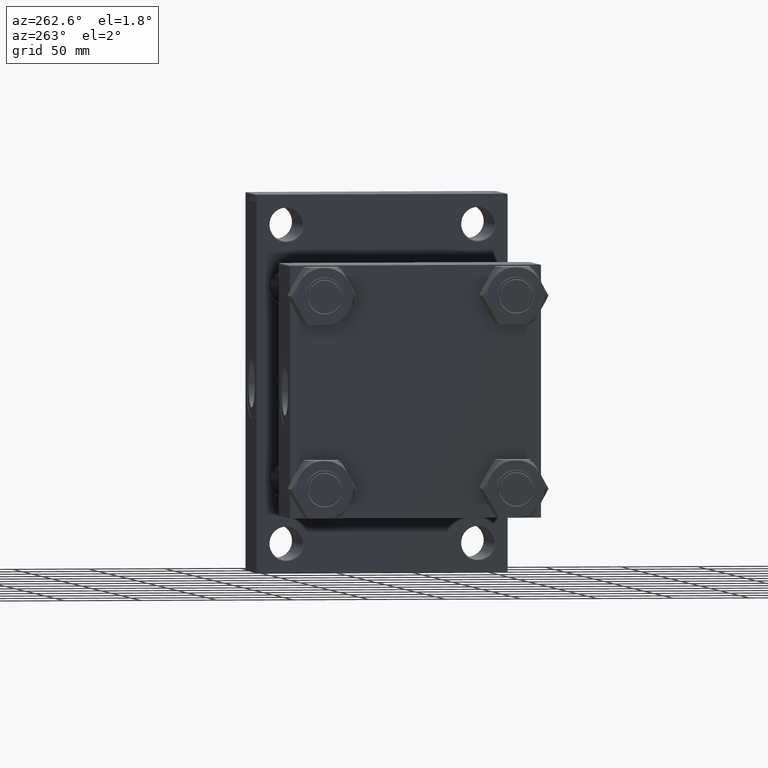
[diagram: clean part render]
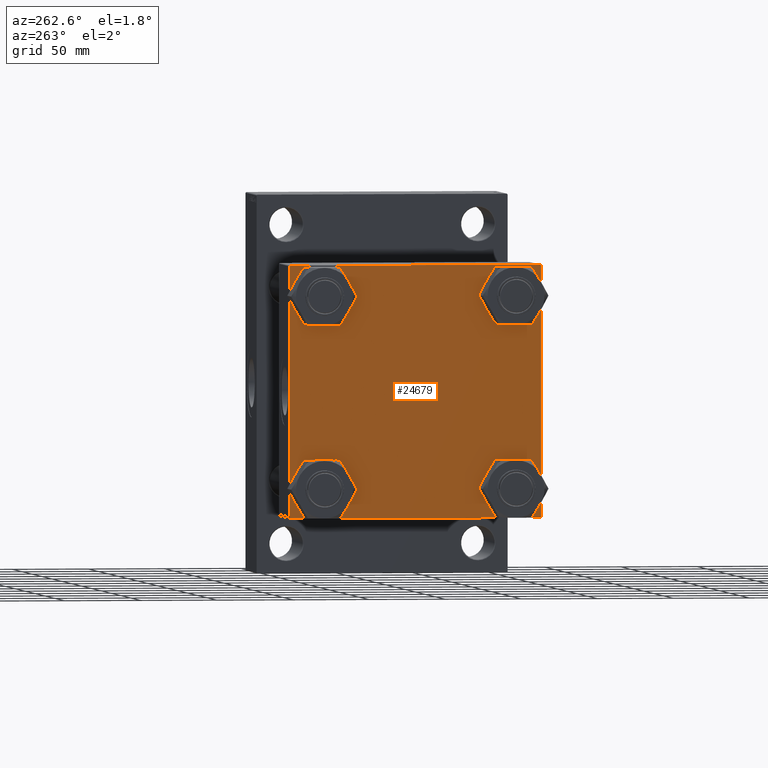
[diagram: same view with one face highlighted and labeled with its STEP entity id]
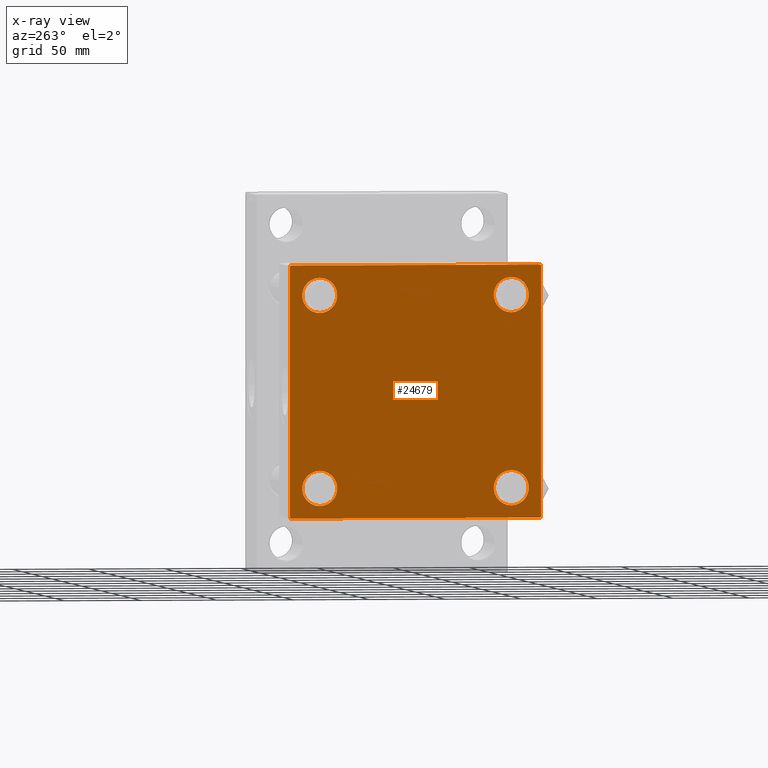
[diagram: x-ray of the same camera — body ghosted, the highlighted face saturated]
A machine part, auxiliary view. The second image highlights one B-rep face of the part: STEP entity #24679.
The next image is the same camera in x-ray: the body ghosted, the highlighted face saturated — about 0% of this face is hidden behind the body in this view.
In plain terms, the highlighted planar face has unit normal (-1, 0, 0).
Its self-contained STEP definition (entity closure, byte-faithful):
#584 = CIRCLE ( 'NONE', #47282, 11.50000000000001066 ) ;
#1351 = EDGE_CURVE ( 'NONE', #43924, #8431, #17751, .T. ) ;
#1450 = DIRECTION ( 'NONE',  ( 0.000000000000000000, 0.000000000000000000, -1.000000000000000000 ) ) ;
#1759 = DIRECTION ( 'NONE',  ( 0.000000000000000000, 0.000000000000000000, 1.000000000000000000 ) ) ;
#1806 = VERTEX_POINT ( 'NONE', #7918 ) ;
#1927 = CARTESIAN_POINT ( 'NONE',  ( 0.000000000000000000, -62.94999999999998153, 62.95000000000001705 ) ) ;
#2754 = AXIS2_PLACEMENT_3D ( 'NONE', #39096, #16951, #28856 ) ;
#3023 = VERTEX_POINT ( 'NONE', #23152 ) ;
#3109 = CIRCLE ( 'NONE', #24152, 11.50000000000001066 ) ;
#3349 = CIRCLE ( 'NONE', #30568, 11.50000000000001066 ) ;
#3507 = CARTESIAN_POINT ( 'NONE',  ( 0.000000000000000000, 62.95000000000000284, 74.45000000000001705 ) ) ;
#4150 = CARTESIAN_POINT ( 'NONE',  ( 0.000000000000000000, -82.25000000000115108, -82.24999999999886313 ) ) ;
#4333 = EDGE_CURVE ( 'NONE', #34904, #19628, #42368, .T. ) ;
#4492 = ORIENTED_EDGE ( 'NONE', *, *, #14796, .T. ) ;
#5099 = EDGE_CURVE ( 'NONE', #42051, #1806, #13489, .T. ) ;
#5128 = EDGE_CURVE ( 'NONE', #34859, #34904, #42132, .T. ) ;
#5491 = VERTEX_POINT ( 'NONE', #41355 ) ;
#5803 = ORIENTED_EDGE ( 'NONE', *, *, #5128, .T. ) ;
#5977 = CARTESIAN_POINT ( 'NONE',  ( 0.000000000000000000, -62.94999999999998153, -62.95000000000001705 ) ) ;
#6210 = DIRECTION ( 'NONE',  ( 0.000000000000000000, 0.000000000000000000, 1.000000000000000000 ) ) ;
#6662 = PLANE ( 'NONE',  #44668 ) ;
#7623 = FACE_BOUND ( 'NONE', #9849, .T. ) ;
#7918 = CARTESIAN_POINT ( 'NONE',  ( 0.000000000000000000, -81.99999999999997158, 82.50000000000001421 ) ) ;
#8266 = EDGE_CURVE ( 'NONE', #19759, #41275, #11597, .T. ) ;
#8431 = VERTEX_POINT ( 'NONE', #3507 ) ;
#9208 = ORIENTED_EDGE ( 'NONE', *, *, #36181, .F. ) ;
#9211 = ORIENTED_EDGE ( 'NONE', *, *, #34473, .T. ) ;
#9344 = AXIS2_PLACEMENT_3D ( 'NONE', #9782, #16619, #1759 ) ;
#9350 = CARTESIAN_POINT ( 'NONE',  ( 0.000000000000000000, 82.50000000000002842, 82.50000000000002842 ) ) ;
#9780 = CARTESIAN_POINT ( 'NONE',  ( 0.000000000000000000, -82.50000000000000000, -81.99999999999998579 ) ) ;
#9782 = CARTESIAN_POINT ( 'NONE',  ( 0.000000000000000000, -62.94999999999998153, 62.95000000000001705 ) ) ;
#9815 = DIRECTION ( 'NONE',  ( 0.000000000000000000, -1.682156097916903588E-16, -1.000000000000000000 ) ) ;
#9849 = EDGE_LOOP ( 'NONE', ( #26833, #39290 ) ) ;
#10190 = DIRECTION ( 'NONE',  ( 1.000000000000000000, -0.000000000000000000, -0.000000000000000000 ) ) ;
#11255 = EDGE_CURVE ( 'NONE', #34794, #30722, #16820, .T. ) ;
#11269 = FACE_BOUND ( 'NONE', #38984, .T. ) ;
#11597 = CIRCLE ( 'NONE', #14703, 11.50000000000001066 ) ;
#12080 = CARTESIAN_POINT ( 'NONE',  ( 0.000000000000000000, 82.00000000000005684, 82.50000000000002842 ) ) ;
#12320 = ORIENTED_EDGE ( 'NONE', *, *, #11255, .T. ) ;
#13152 = CARTESIAN_POINT ( 'NONE',  ( 0.000000000000000000, 82.50000000000002842, -82.49999999999997158 ) ) ;
#13473 = DIRECTION ( 'NONE',  ( 0.000000000000000000, -1.000000000000000000, -8.410780489584519171E-17 ) ) ;
#13489 = LINE ( 'NONE', #28355, #16398 ) ;
#14034 = CIRCLE ( 'NONE', #9344, 11.50000000000001066 ) ;
#14294 = ORIENTED_EDGE ( 'NONE', *, *, #14913, .T. ) ;
#14703 = AXIS2_PLACEMENT_3D ( 'NONE', #5977, #35207, #6210 ) ;
#14796 = EDGE_CURVE ( 'NONE', #5491, #3023, #14034, .T. ) ;
#14879 = ORIENTED_EDGE ( 'NONE', *, *, #46576, .F. ) ;
#14913 = EDGE_CURVE ( 'NONE', #45761, #42530, #3109, .T. ) ;
#15336 = CARTESIAN_POINT ( 'NONE',  ( 0.000000000000000000, 82.50000000000002842, -82.00000000000000000 ) ) ;
#16357 = CARTESIAN_POINT ( 'NONE',  ( 0.000000000000000000, -82.00000000000000000, -82.50000000000000000 ) ) ;
#16398 = VECTOR ( 'NONE', #37982, 1000.000000000000114 ) ;
#16439 = EDGE_CURVE ( 'NONE', #19628, #34794, #41924, .T. ) ;
#16619 = DIRECTION ( 'NONE',  ( 1.000000000000000000, -0.000000000000000000, -0.000000000000000000 ) ) ;
#16820 = LINE ( 'NONE', #13152, #17941 ) ;
#16951 = DIRECTION ( 'NONE',  ( 1.000000000000000000, -0.000000000000000000, -0.000000000000000000 ) ) ;
#17751 = CIRCLE ( 'NONE', #36407, 11.50000000000001066 ) ;
#17871 = FACE_OUTER_BOUND ( 'NONE', #29744, .T. ) ;
#17941 = VECTOR ( 'NONE', #31665, 1000.000000000000000 ) ;
#18066 = DIRECTION ( 'NONE',  ( 0.000000000000000000, -0.7071067811865376918, 0.7071067811865574537 ) ) ;
#18114 = FACE_BOUND ( 'NONE', #28738, .T. ) ;
#18335 = DIRECTION ( 'NONE',  ( 1.000000000000000000, -0.000000000000000000, -0.000000000000000000 ) ) ;
#18812 = DIRECTION ( 'NONE',  ( -0.000000000000000000, -0.7071067811865474617, -0.7071067811865474617 ) ) ;
#18852 = ORIENTED_EDGE ( 'NONE', *, *, #28627, .T. ) ;
#19274 = CARTESIAN_POINT ( 'NONE',  ( 0.000000000000000000, 62.95000000000000284, 62.95000000000000284 ) ) ;
#19612 = CARTESIAN_POINT ( 'NONE',  ( 0.000000000000000000, 62.95000000000000284, 51.44999999999999574 ) ) ;
#19628 = VERTEX_POINT ( 'NONE', #15336 ) ;
#19759 = VERTEX_POINT ( 'NONE', #42113 ) ;
#19957 = DIRECTION ( 'NONE',  ( 0.000000000000000000, 0.000000000000000000, 1.000000000000000000 ) ) ;
#21261 = LINE ( 'NONE', #43193, #28455 ) ;
#21352 = VERTEX_POINT ( 'NONE', #9780 ) ;
#21525 = DIRECTION ( 'NONE',  ( 0.000000000000000000, 0.000000000000000000, 1.000000000000000000 ) ) ;
#21718 = LINE ( 'NONE', #4150, #43099 ) ;
#22483 = CARTESIAN_POINT ( 'NONE',  ( 0.000000000000000000, 0.000000000000000000, 0.000000000000000000 ) ) ;
#22693 = CARTESIAN_POINT ( 'NONE',  ( 0.000000000000000000, 82.25000000000001421, -82.25000000000001421 ) ) ;
#23152 = CARTESIAN_POINT ( 'NONE',  ( 0.000000000000000000, -62.94999999999998153, 74.45000000000003126 ) ) ;
#23378 = CARTESIAN_POINT ( 'NONE',  ( 0.000000000000000000, 82.25000000000002842, 82.25000000000002842 ) ) ;
#23609 = DIRECTION ( 'NONE',  ( 1.000000000000000000, -0.000000000000000000, -0.000000000000000000 ) ) ;
#23730 = CIRCLE ( 'NONE', #2754, 11.50000000000001066 ) ;
#23886 = DIRECTION ( 'NONE',  ( 1.000000000000000000, -0.000000000000000000, -0.000000000000000000 ) ) ;
#24152 = AXIS2_PLACEMENT_3D ( 'NONE', #43159, #35834, #45851 ) ;
#24294 = CIRCLE ( 'NONE', #28945, 11.50000000000001066 ) ;
#24679 = ADVANCED_FACE ( 'NONE', ( #43927, #18114, #11269, #7623, #17871 ), #6662, .T. ) ;
#25019 = ORIENTED_EDGE ( 'NONE', *, *, #8266, .T. ) ;
#25643 = DIRECTION ( 'NONE',  ( 0.000000000000000000, 0.000000000000000000, 1.000000000000000000 ) ) ;
#26167 = ORIENTED_EDGE ( 'NONE', *, *, #36841, .T. ) ;
#26833 = ORIENTED_EDGE ( 'NONE', *, *, #33475, .T. ) ;
#27743 = CARTESIAN_POINT ( 'NONE',  ( 0.000000000000000000, 62.95000000000000284, 62.95000000000000284 ) ) ;
#28355 = CARTESIAN_POINT ( 'NONE',  ( 0.000000000000000000, -82.25000000000000000, 82.25000000000000000 ) ) ;
#28455 = VECTOR ( 'NONE', #9815, 1000.000000000000000 ) ;
#28465 = DIRECTION ( 'NONE',  ( 0.000000000000000000, 0.000000000000000000, 1.000000000000000000 ) ) ;
#28627 = EDGE_CURVE ( 'NONE', #30722, #21352, #21718, .T. ) ;
#28738 = EDGE_LOOP ( 'NONE', ( #25019, #9211 ) ) ;
#28856 = DIRECTION ( 'NONE',  ( 0.000000000000000000, 0.000000000000000000, 1.000000000000000000 ) ) ;
#28945 = AXIS2_PLACEMENT_3D ( 'NONE', #33650, #18335, #25643 ) ;
#29168 = CARTESIAN_POINT ( 'NONE',  ( 0.000000000000000000, -62.94999999999998153, -74.45000000000003126 ) ) ;
#29744 = EDGE_LOOP ( 'NONE', ( #41898, #46066, #12320, #18852, #14879, #36300, #9208, #5803 ) ) ;
#30568 = AXIS2_PLACEMENT_3D ( 'NONE', #1927, #23609, #19957 ) ;
#30722 = VERTEX_POINT ( 'NONE', #16357 ) ;
#30782 = CARTESIAN_POINT ( 'NONE',  ( 0.000000000000000000, 62.95000000000000284, -51.44999999999999574 ) ) ;
#30921 = DIRECTION ( 'NONE',  ( 0.000000000000000000, 0.7071067811865474617, -0.7071067811865474617 ) ) ;
#31051 = VECTOR ( 'NONE', #1450, 1000.000000000000000 ) ;
#31168 = VECTOR ( 'NONE', #18812, 1000.000000000000114 ) ;
#31514 = LINE ( 'NONE', #9350, #39892 ) ;
#31665 = DIRECTION ( 'NONE',  ( 0.000000000000000000, -1.000000000000000000, -1.682156097916903588E-16 ) ) ;
#32343 = CARTESIAN_POINT ( 'NONE',  ( 0.000000000000000000, -82.49999999999997158, 82.00000000000001421 ) ) ;
#33475 = EDGE_CURVE ( 'NONE', #8431, #43924, #584, .T. ) ;
#33650 = CARTESIAN_POINT ( 'NONE',  ( 0.000000000000000000, -62.94999999999998153, -62.95000000000001705 ) ) ;
#34010 = CARTESIAN_POINT ( 'NONE',  ( 0.000000000000000000, 82.00000000000005684, -82.49999999999997158 ) ) ;
#34473 = EDGE_CURVE ( 'NONE', #41275, #19759, #24294, .T. ) ;
#34741 = CARTESIAN_POINT ( 'NONE',  ( 0.000000000000000000, 82.50000000000002842, 82.00000000000005684 ) ) ;
#34794 = VERTEX_POINT ( 'NONE', #34010 ) ;
#34817 = CARTESIAN_POINT ( 'NONE',  ( 0.000000000000000000, 82.50000000000002842, 82.50000000000002842 ) ) ;
#34859 = VERTEX_POINT ( 'NONE', #12080 ) ;
#34904 = VERTEX_POINT ( 'NONE', #34741 ) ;
#35207 = DIRECTION ( 'NONE',  ( 1.000000000000000000, -0.000000000000000000, -0.000000000000000000 ) ) ;
#35834 = DIRECTION ( 'NONE',  ( 1.000000000000000000, -0.000000000000000000, -0.000000000000000000 ) ) ;
#36181 = EDGE_CURVE ( 'NONE', #34859, #1806, #31514, .T. ) ;
#36300 = ORIENTED_EDGE ( 'NONE', *, *, #5099, .T. ) ;
#36407 = AXIS2_PLACEMENT_3D ( 'NONE', #27743, #10190, #28465 ) ;
#36629 = VECTOR ( 'NONE', #30921, 1000.000000000000114 ) ;
#36841 = EDGE_CURVE ( 'NONE', #3023, #5491, #3349, .T. ) ;
#37982 = DIRECTION ( 'NONE',  ( -0.000000000000000000, 0.7071067811865474617, 0.7071067811865474617 ) ) ;
#38003 = DIRECTION ( 'NONE',  ( 0.000000000000000000, 0.000000000000000000, 1.000000000000000000 ) ) ;
#38151 = ORIENTED_EDGE ( 'NONE', *, *, #45342, .T. ) ;
#38792 = CARTESIAN_POINT ( 'NONE',  ( 0.000000000000000000, 62.95000000000000284, -74.45000000000001705 ) ) ;
#38984 = EDGE_LOOP ( 'NONE', ( #38151, #14294 ) ) ;
#39096 = CARTESIAN_POINT ( 'NONE',  ( 0.000000000000000000, 62.95000000000000284, -62.95000000000000284 ) ) ;
#39290 = ORIENTED_EDGE ( 'NONE', *, *, #1351, .T. ) ;
#39892 = VECTOR ( 'NONE', #13473, 1000.000000000000000 ) ;
#40266 = DIRECTION ( 'NONE',  ( -1.000000000000000000, 0.000000000000000000, 0.000000000000000000 ) ) ;
#41275 = VERTEX_POINT ( 'NONE', #29168 ) ;
#41355 = CARTESIAN_POINT ( 'NONE',  ( 0.000000000000000000, -62.94999999999998153, 51.45000000000000995 ) ) ;
#41898 = ORIENTED_EDGE ( 'NONE', *, *, #4333, .T. ) ;
#41924 = LINE ( 'NONE', #22693, #31168 ) ;
#42051 = VERTEX_POINT ( 'NONE', #32343 ) ;
#42113 = CARTESIAN_POINT ( 'NONE',  ( 0.000000000000000000, -62.94999999999998153, -51.45000000000000995 ) ) ;
#42132 = LINE ( 'NONE', #23378, #36629 ) ;
#42368 = LINE ( 'NONE', #34817, #31051 ) ;
#42530 = VERTEX_POINT ( 'NONE', #30782 ) ;
#43099 = VECTOR ( 'NONE', #18066, 999.9999999999998863 ) ;
#43159 = CARTESIAN_POINT ( 'NONE',  ( 0.000000000000000000, 62.95000000000000284, -62.95000000000000284 ) ) ;
#43193 = CARTESIAN_POINT ( 'NONE',  ( 0.000000000000000000, -82.49999999999997158, 82.50000000000001421 ) ) ;
#43924 = VERTEX_POINT ( 'NONE', #19612 ) ;
#43927 = FACE_BOUND ( 'NONE', #46481, .T. ) ;
#44668 = AXIS2_PLACEMENT_3D ( 'NONE', #22483, #40266, #21525 ) ;
#45342 = EDGE_CURVE ( 'NONE', #42530, #45761, #23730, .T. ) ;
#45761 = VERTEX_POINT ( 'NONE', #38792 ) ;
#45851 = DIRECTION ( 'NONE',  ( 0.000000000000000000, 0.000000000000000000, 1.000000000000000000 ) ) ;
#46066 = ORIENTED_EDGE ( 'NONE', *, *, #16439, .T. ) ;
#46481 = EDGE_LOOP ( 'NONE', ( #26167, #4492 ) ) ;
#46576 = EDGE_CURVE ( 'NONE', #42051, #21352, #21261, .T. ) ;
#47282 = AXIS2_PLACEMENT_3D ( 'NONE', #19274, #23886, #38003 ) ;